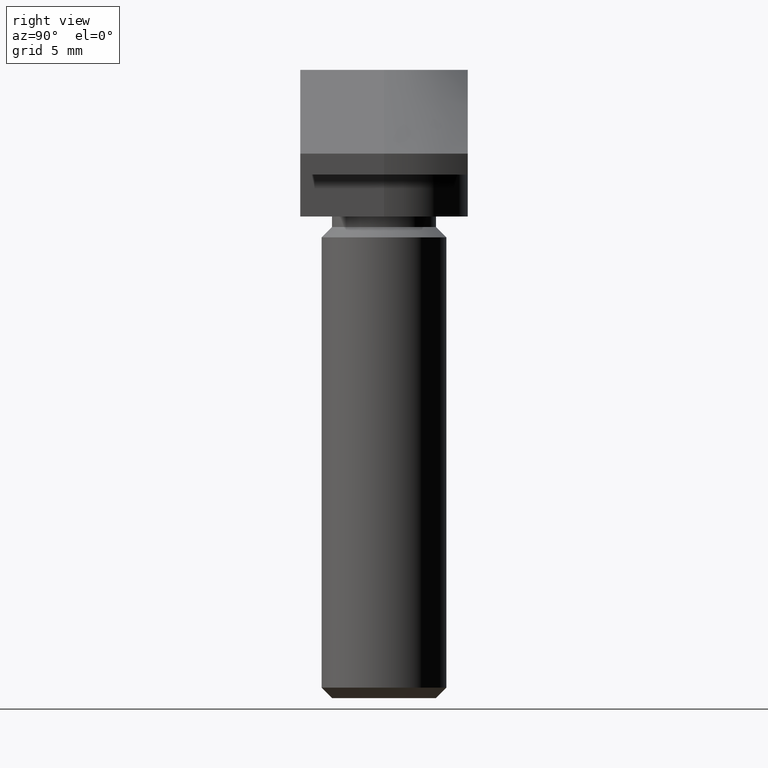
[diagram: clean part render]
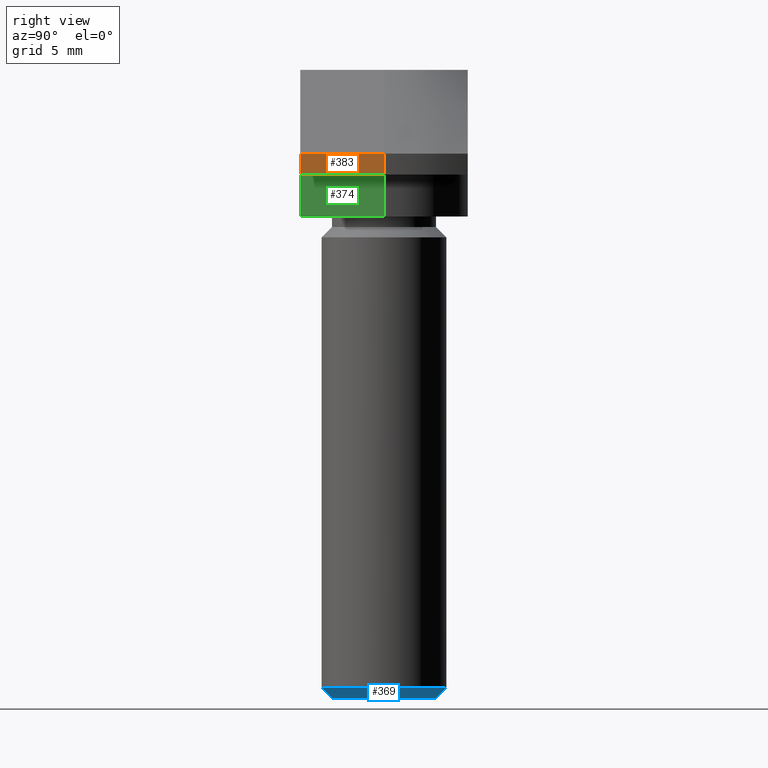
[diagram: same view with three faces highlighted in distinct colors, each labeled with its STEP entity id]
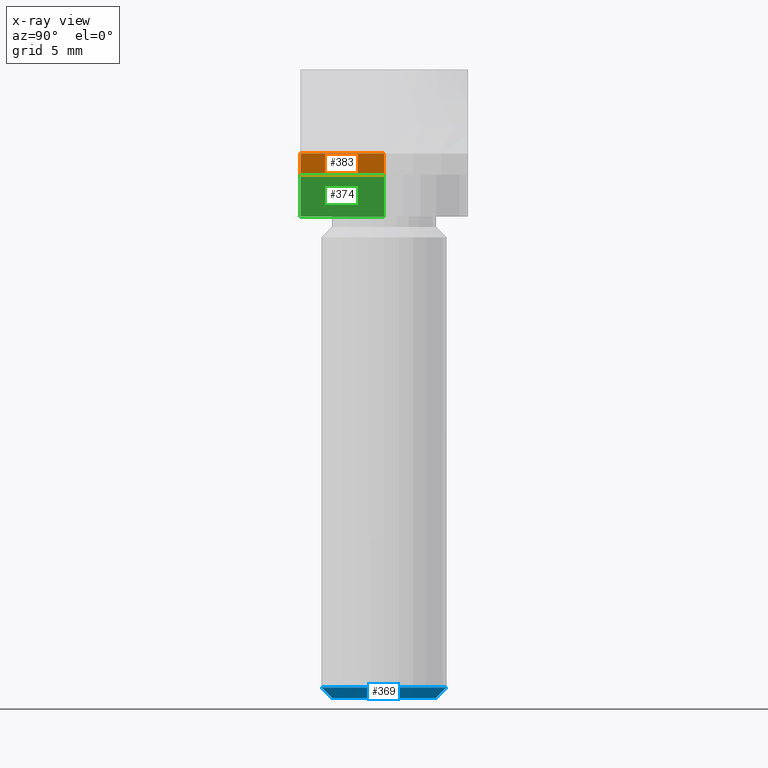
[diagram: x-ray of the same camera — body ghosted, the three highlighted faces saturated]
A machine part, right view with three faces highlighted in distinct colors.
The next image is the same camera in x-ray (body ghosted, the three faces saturated) — at least one of them is partly hidden behind the body in this view.
Their STEP definitions:

[orange] entity #383 — the highlighted planar face has unit normal (1, 0, 0).
#33=LINE('',#605,#67);
#37=LINE('',#620,#71);
#41=LINE('',#637,#75);
#42=LINE('',#638,#76);
#67=VECTOR('',#494,4.);
#71=VECTOR('',#506,1.);
#75=VECTOR('',#520,4.);
#76=VECTOR('',#521,1.);
#91=PLANE('',#423);
#125=FACE_OUTER_BOUND('',#153,.T.);
#153=EDGE_LOOP('',(#321,#322,#323,#324));
#196=VERTEX_POINT('',#602);
#197=VERTEX_POINT('',#604);
#201=VERTEX_POINT('',#615);
#206=VERTEX_POINT('',#636);
#237=EDGE_CURVE('',#196,#197,#33,.T.);
#244=EDGE_CURVE('',#201,#196,#37,.T.);
#251=EDGE_CURVE('',#201,#206,#41,.T.);
#252=EDGE_CURVE('',#197,#206,#42,.T.);
#321=ORIENTED_EDGE('',*,*,#244,.F.);
#322=ORIENTED_EDGE('',*,*,#251,.T.);
#323=ORIENTED_EDGE('',*,*,#252,.F.);
#324=ORIENTED_EDGE('',*,*,#237,.F.);
#383=ADVANCED_FACE('',(#125),#91,.T.);
#423=AXIS2_PLACEMENT_3D('',#635,#518,#519);
#494=DIRECTION('',(0.,-1.,0.));
#506=DIRECTION('',(0.,0.,-1.));
#518=DIRECTION('center_axis',(1.,0.,0.));
#519=DIRECTION('ref_axis',(0.,0.,-1.));
#520=DIRECTION('',(0.,-1.,0.));
#521=DIRECTION('',(0.,0.,1.));
#602=CARTESIAN_POINT('',(8.,0.,-5.));
#604=CARTESIAN_POINT('',(8.,-4.,-5.));
#605=CARTESIAN_POINT('',(8.,0.,-5.));
#615=CARTESIAN_POINT('',(8.,0.,-4.));
#620=CARTESIAN_POINT('',(8.,0.,-4.5));
#635=CARTESIAN_POINT('Origin',(8.,0.,-4.));
#636=CARTESIAN_POINT('',(8.,-4.,-4.));
#637=CARTESIAN_POINT('',(8.,0.,-4.));
#638=CARTESIAN_POINT('',(8.,-4.,-5.));

[blue] entity #369 — the highlighted conical surface has half-angle 45 deg.
#106=FACE_BOUND('',#137,.T.);
#111=FACE_OUTER_BOUND('',#136,.T.);
#136=EDGE_LOOP('',(#265));
#137=EDGE_LOOP('',(#266));
#162=CIRCLE('',#396,3.);
#163=CIRCLE('',#398,2.5);
#177=VERTEX_POINT('',#549);
#178=VERTEX_POINT('',#552);
#212=EDGE_CURVE('',#177,#177,#162,.T.);
#213=EDGE_CURVE('',#178,#178,#163,.T.);
#265=ORIENTED_EDGE('',*,*,#212,.T.);
#266=ORIENTED_EDGE('',*,*,#213,.T.);
#364=CONICAL_SURFACE('',#397,2.75,45.0000000000001);
#369=ADVANCED_FACE('',(#111,#106),#364,.T.);
#396=AXIS2_PLACEMENT_3D('',#550,#440,#441);
#397=AXIS2_PLACEMENT_3D('',#551,#442,#443);
#398=AXIS2_PLACEMENT_3D('',#553,#444,#445);
#440=DIRECTION('center_axis',(0.,0.,-1.));
#441=DIRECTION('ref_axis',(1.,0.,0.));
#442=DIRECTION('center_axis',(0.,0.,1.));
#443=DIRECTION('ref_axis',(1.,0.,0.));
#444=DIRECTION('center_axis',(0.,0.,1.));
#445=DIRECTION('ref_axis',(1.,0.,0.));
#549=CARTESIAN_POINT('',(-3.,3.67394039744206E-16,-29.5));
#550=CARTESIAN_POINT('Origin',(0.,0.,-29.5));
#551=CARTESIAN_POINT('Origin',(0.,0.,-29.75));
#552=CARTESIAN_POINT('',(-2.5,-3.06161699786838E-16,-30.));
#553=CARTESIAN_POINT('Origin',(0.,0.,-30.));

[green] entity #374 — the highlighted planar face has unit normal (1, -0, 0).
#22=LINE('',#576,#56);
#23=LINE('',#578,#57);
#24=LINE('',#580,#58);
#25=LINE('',#581,#59);
#56=VECTOR('',#467,3.99999999999999);
#57=VECTOR('',#468,2.);
#58=VECTOR('',#469,3.99999999999999);
#59=VECTOR('',#470,2.);
#87=PLANE('',#406);
#116=FACE_OUTER_BOUND('',#143,.T.);
#143=EDGE_LOOP('',(#278,#279,#280,#281));
#186=VERTEX_POINT('',#574);
#187=VERTEX_POINT('',#575);
#188=VERTEX_POINT('',#577);
#189=VERTEX_POINT('',#579);
#222=EDGE_CURVE('',#186,#187,#22,.T.);
#223=EDGE_CURVE('',#186,#188,#23,.T.);
#224=EDGE_CURVE('',#189,#188,#24,.T.);
#225=EDGE_CURVE('',#187,#189,#25,.T.);
#278=ORIENTED_EDGE('',*,*,#222,.F.);
#279=ORIENTED_EDGE('',*,*,#223,.T.);
#280=ORIENTED_EDGE('',*,*,#224,.F.);
#281=ORIENTED_EDGE('',*,*,#225,.F.);
#374=ADVANCED_FACE('',(#116),#87,.T.);
#406=AXIS2_PLACEMENT_3D('',#573,#465,#466);
#465=DIRECTION('center_axis',(1.,-1.38777878078145E-16,0.));
#466=DIRECTION('ref_axis',(-1.33226762955019E-16,-1.,0.));
#467=DIRECTION('',(1.38777878078145E-16,1.,0.));
#468=DIRECTION('',(0.,0.,-1.));
#469=DIRECTION('',(-1.38777878078145E-16,-1.,0.));
#470=DIRECTION('',(0.,0.,-1.));
#573=CARTESIAN_POINT('Origin',(3.99999999999999,-5.55111512312578E-16,-5.));
#574=CARTESIAN_POINT('',(3.99999999999999,-3.99999999999999,-5.));
#575=CARTESIAN_POINT('',(3.99999999999999,-5.55111512312578E-16,-5.));
#576=CARTESIAN_POINT('',(3.99999999999999,1.10933564796705E-30,-5.));
#577=CARTESIAN_POINT('',(3.99999999999999,-3.99999999999999,-7.));
#578=CARTESIAN_POINT('',(3.99999999999999,-3.99999999999999,-5.));
#579=CARTESIAN_POINT('',(3.99999999999999,-5.55111512312578E-16,-7.));
#580=CARTESIAN_POINT('',(3.99999999999999,-3.99999999999999,-7.));
#581=CARTESIAN_POINT('',(3.99999999999999,-5.55111512312578E-16,-5.));